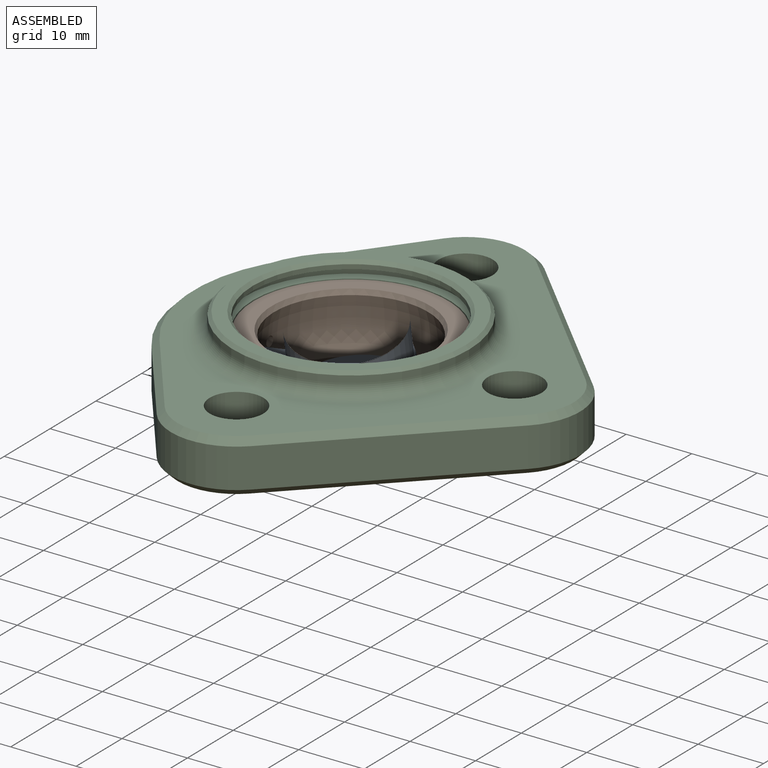
[diagram: assembled view]
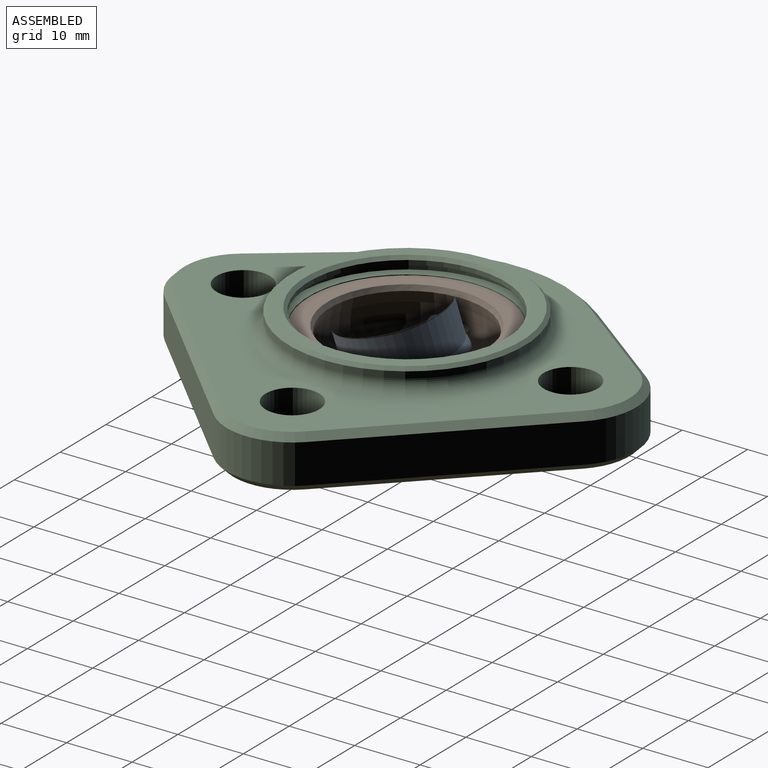
[diagram: assembled view, second angle]
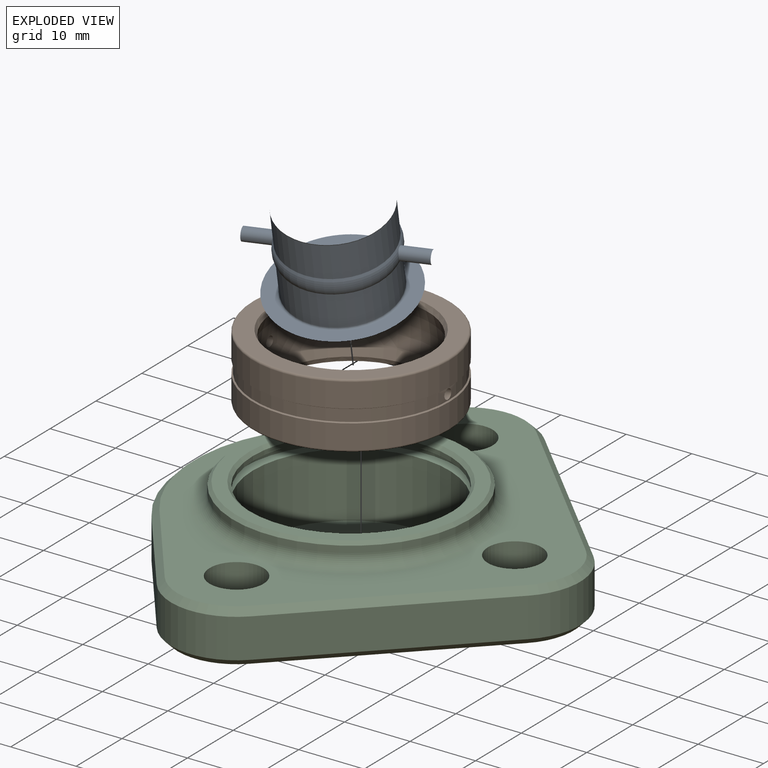
[diagram: exploded view]
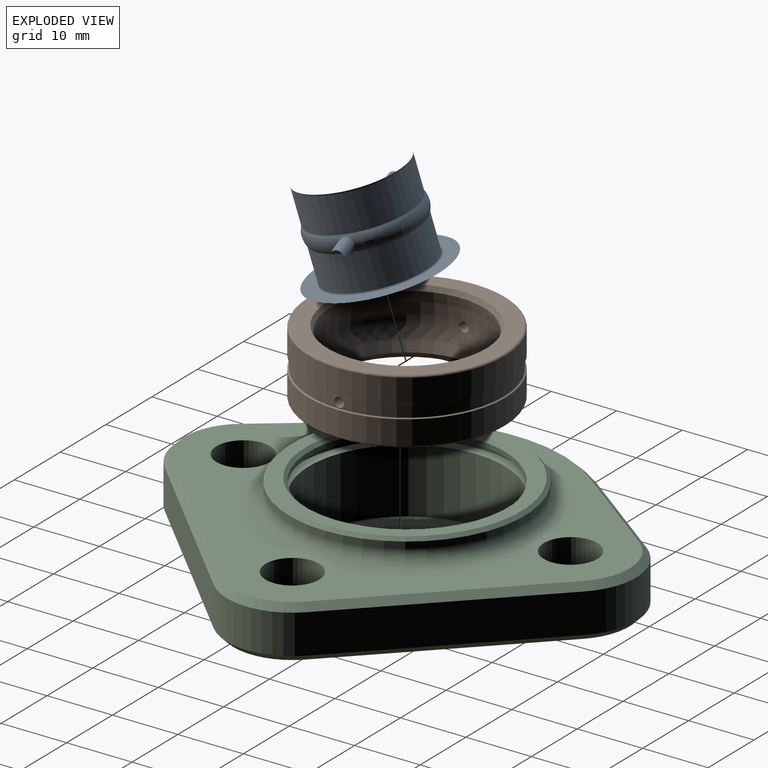
[diagram: exploded view, second angle]
ASSEMBLY  parts=3 mates=2
PART A: 10 faces, bbox 25x25x25 mm
  f0: torus R=5.8mm, axis (0,0,1), area 130.4mm2, adj f1,f4,f6,f7
  f1: cylinder r=8mm len=16mm, axis (0,0,1), area 273.2mm2, adj f0,f2
  f2: torus R=8.3mm, axis (0,0,1), area 24mm2, adj f1,f9
  f3: torus R=8.3mm, axis (0,0,1), area 24mm2, adj f4,f8
  f4: cylinder r=8mm len=16mm, axis (0,0,1), area 273.2mm2, adj f0,f3
  f5: sphere r=12.5mm, area 1969.9mm2, adj f6,f7,f8,f9
  f6: cylinder r=1mm len=4.33mm, axis (1,0,0), area 26.7mm2, adj f0,f5
  f7: cylinder r=1mm len=4.33mm, axis (1,0,0), area 26.7mm2, adj f0,f5
  f8: plane 20.71x20.71mm, normal (0,0,1), area 120.5mm2, adj f3,f5
  f9: plane 20.71x20.71mm, normal (0,0,-1), area 120.5mm2, adj f2,f5
PART B: 14 faces, bbox 32.5x32.5x10 mm
  f0: cone r=11.93mm half-angle=25deg, axis (0,0,1), area 62mm2, adj f8,f13
  f1: torus R=14.7mm, axis (0,0,1), area 44.1mm2, adj f2,f13
  f2: cylinder r=15mm len=30mm, axis (0,0,1), area 346.7mm2, adj f1,f3
  f3: cone r=14.89mm half-angle=60deg, axis (0,0,1), area 22.7mm2, adj f2,f9
  f4: cone r=14.89mm half-angle=60deg, axis (0,0,-1), area 22.7mm2, adj f5,f9
  f5: cylinder r=15mm len=30mm, axis (0,0,1), area 346.7mm2, adj f4,f6
  f6: torus R=14.7mm, axis (0,0,1), area 44.1mm2, adj f5,f12
  f7: cone r=11.93mm half-angle=25deg, axis (0,0,-1), area 62mm2, adj f8,f12
  f8: revolved ~24.9x24.9mm, area 1325.7mm2, adj f0,f7,f10,f11
  f9: cylinder r=14.79mm len=29.58mm, axis (0,0,1), area 163.7mm2, adj f3,f4,f10,f11
  f10: cylinder r=0.75mm len=2.35mm, axis (1,0,0), area 11.1mm2, adj f8,f9
  f11: cylinder r=0.75mm len=2.35mm, axis (1,0,0), area 11.1mm2, adj f8,f9
  f12: plane 29.4x29.4mm, normal (0,0,-1), area 218.5mm2, adj f6,f7
  f13: plane 29.4x29.4mm, normal (0,0,1), area 218.5mm2, adj f0,f1
PART C: 50 faces, bbox 60x70x15 mm
  f0: cylinder r=15mm len=30mm, axis (0,0,-1), area 933.1mm2, adj f43,f46
  f1: cylinder r=15mm len=30mm, axis (0,0,-1), area 66mm2, adj f42,f45
  f2: cylinder r=25mm len=30mm, axis (0,0,-1), area 193.1mm2, adj f3,f11,f15,f26
  f3: plane 16x12mm, normal (-0.8,-0.6,0), area 120mm2, adj f2,f4,f16,f28
  f4: cylinder r=10mm len=15.07mm, axis (0,0,-1), area 102.8mm2, adj f3,f5,f18,f30
  f5: plane 25x25mm, normal (0.71,-0.71,0), area 212.1mm2, adj f4,f6,f20,f29
  f6: cylinder r=10mm len=14.14mm, axis (0,0,-1), area 94.2mm2, adj f5,f13,f22,f27
  f7: cylinder r=4.1mm len=8.2mm, axis (0,0,-1), area 206.1mm2, adj f9,f10
  f8: cylinder r=4.1mm len=8.2mm, axis (0,0,-1), area 206.1mm2, adj f9,f10
  f9: plane 68x58mm, normal (0,0,1), area 1079.3mm2, adj f7,f8,f14,f23,f24,f25,f26,f27
  f10: plane 68x58mm, normal (0,0,-1), area 1079.3mm2, adj f7,f8,f14,f15,f16,f17,f18,f19
  f11: plane 16x12mm, normal (-0.8,0.6,0), area 120mm2, adj f2,f12,f17,f24
  f12: cylinder r=10mm len=15.07mm, axis (0,0,-1), area 102.8mm2, adj f11,f13,f19,f23
  f13: plane 25x25mm, normal (0.71,0.71,0), area 212.1mm2, adj f6,f12,f21,f25
  f14: cylinder r=4.1mm len=8.2mm, axis (0,0,-1), area 206.1mm2, adj f9,f10
  f15: cone r=25mm half-angle=45deg, axis (0,0,1), area 44.6mm2, adj f2,f10,f16,f17
  f16: plane 16.6x12.8mm, normal (-0.57,-0.42,-0.71), area 28.3mm2, adj f3,f10,f15,f18
  f17: plane 16.6x12.8mm, normal (-0.57,0.42,-0.71), area 28.3mm2, adj f10,f11,f15,f19
  f18: cone r=10mm half-angle=45deg, axis (0,0,1), area 23mm2, adj f4,f10,f16,f20
  f19: cone r=9mm half-angle=45deg, axis (0,0,1), area 23mm2, adj f10,f12,f17,f21
  f20: plane 25.71x25.71mm, normal (0.5,-0.5,-0.71), area 50mm2, adj f5,f10,f18,f22
  f21: plane 25.71x25.71mm, normal (0.5,0.5,-0.71), area 50mm2, adj f10,f13,f19,f22
  f22: cone r=10mm half-angle=45deg, axis (0,0,1), area 21.1mm2, adj f6,f10,f20,f21
  f23: cone r=10mm half-angle=45deg, axis (0,0,-1), area 23mm2, adj f9,f12,f24,f25
  f24: plane 16.6x12.8mm, normal (-0.57,0.42,0.71), area 28.3mm2, adj f9,f11,f23,f26
  f25: plane 25.71x25.71mm, normal (0.5,0.5,0.71), area 50mm2, adj f9,f13,f23,f27
  f26: cone r=24mm half-angle=45deg, axis (0,0,-1), area 44.6mm2, adj f2,f9,f24,f28
  f27: cone r=9mm half-angle=45deg, axis (0,0,-1), area 21.1mm2, adj f6,f9,f25,f29
  f28: plane 16.6x12.8mm, normal (-0.57,-0.42,0.71), area 28.3mm2, adj f3,f9,f26,f30
  f29: plane 25.71x25.71mm, normal (0.5,-0.5,0.71), area 50mm2, adj f5,f9,f27,f30
  f30: cone r=9mm half-angle=45deg, axis (0,0,-1), area 23mm2, adj f4,f9,f28,f29
  f31: plane 35x35mm, normal (0,0,-1), area 409.1mm2, adj f37,f48
  f32: cylinder r=18mm len=36mm, axis (0,0,-1), area 113.1mm2, adj f37,f40
  f33: cylinder r=18mm len=36mm, axis (0,0,-1), area 113.1mm2, adj f38,f39
  f34: plane 35x35mm, normal (0,0,1), area 207.3mm2, adj f38,f45
  f35: plane 29.8x29.8mm, normal (0,0,1), area 206.6mm2, adj f44,f46
  f36: cylinder r=12mm len=24mm, axis (0,0,-1), area 26.3mm2, adj f44,f49
  f37: cone r=18mm half-angle=45deg, axis (0,0,1), area 78.9mm2, adj f31,f32
  f38: cone r=17.5mm half-angle=45deg, axis (0,0,-1), area 78.9mm2, adj f33,f34
  f39: torus R=20mm, axis (0,0,1), area 369.7mm2, adj f9,f33
  f40: torus R=20mm, axis (0,0,1), area 369.7mm2, adj f10,f32
  f41: cylinder r=16.5mm len=33mm, axis (0,0,-1), area 134.8mm2, adj f42,f43
  f42: plane 33x33mm, normal (0,0,-1), area 148.4mm2, adj f1,f41
  f43: plane 33x33mm, normal (0,0,1), area 148.4mm2, adj f0,f41
  f44: cone r=12.5mm half-angle=45deg, axis (0,0,1), area 54.4mm2, adj f35,f36
  f45: cone r=15mm half-angle=45deg, axis (0,0,1), area 67.8mm2, adj f1,f34
  f46: cone r=15mm half-angle=45deg, axis (0,0,1), area 13.3mm2, adj f0,f35
  f47: cone r=12mm half-angle=33.7deg, axis (0,0,-1), area 108.4mm2, adj f48,f49
  f48: torus R=13.27mm, axis (0,0,1), area 40.3mm2, adj f31,f47
  f49: torus R=12.5mm, axis (0,0,1), area 22.2mm2, adj f36,f47
PLACE A rot(axis=(0.66,0.09,0.75),24deg) t=(0,0,0)mm
PLACE B at identity fixed
PLACE C at identity
MATE revolute C.f32 <-> B.f5  axis (0,0,1) through (0,0,5)mm
MATE ball A.f0 <-> B.f9  axis (0.08,-0.26,0.96) through (0,0,0)mm
